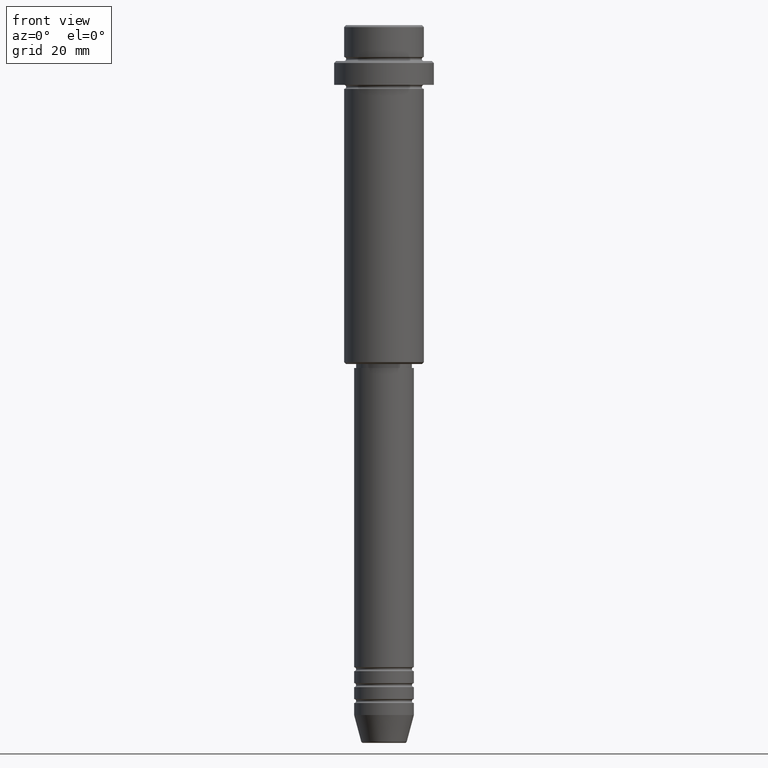
[diagram: clean part render]
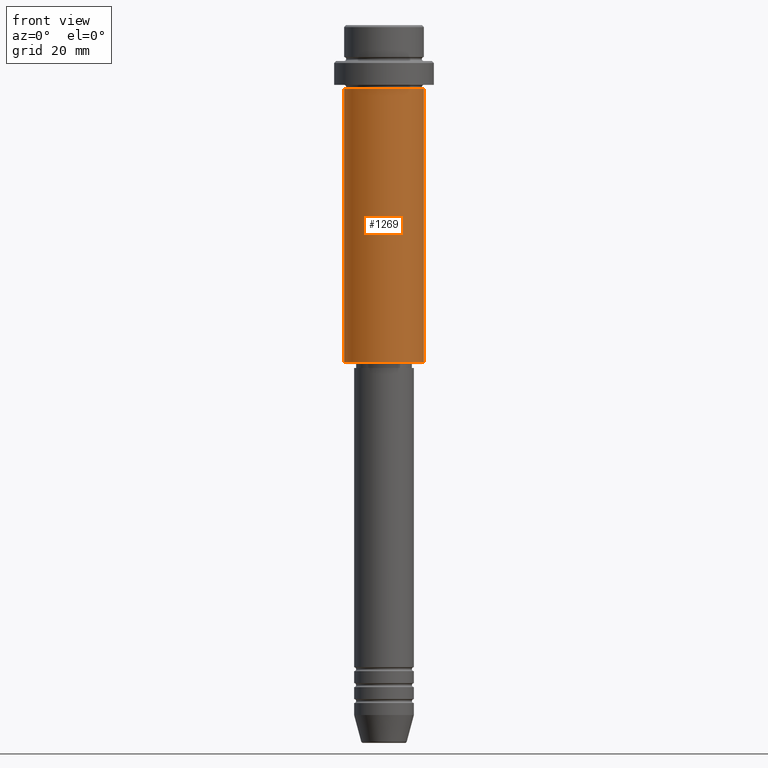
[diagram: same view with one face highlighted and labeled with its STEP entity id]
A machine part, front view. The second image highlights one B-rep face of the part: STEP entity #1269.
In plain terms, the highlighted cylindrical surface (partial cylindrical patch) has radius 10 mm, axis along (-0, -0, 1).
Its self-contained STEP definition (entity closure, byte-faithful):
#16 = VECTOR ( 'NONE', #725, 1000.000000000000000 ) ;
#54 = ORIENTED_EDGE ( 'NONE', *, *, #917, .T. ) ;
#84 = ORIENTED_EDGE ( 'NONE', *, *, #515, .F. ) ;
#145 = ORIENTED_EDGE ( 'NONE', *, *, #706, .T. ) ;
#151 = VERTEX_POINT ( 'NONE', #1162 ) ;
#159 = VERTEX_POINT ( 'NONE', #944 ) ;
#161 = EDGE_CURVE ( 'NONE', #334, #1328, #336, .T. ) ;
#191 = DIRECTION ( 'NONE',  ( -0.000000000000000000, -0.000000000000000000, 1.000000000000000000 ) ) ;
#206 = AXIS2_PLACEMENT_3D ( 'NONE', #399, #313, #498 ) ;
#245 = CARTESIAN_POINT ( 'NONE',  ( -9.999999999999998224, 1.224646799147353059E-15, 0.000000000000000000 ) ) ;
#280 = DIRECTION ( 'NONE',  ( 1.000000000000000000, 0.000000000000000000, 0.000000000000000000 ) ) ;
#303 = AXIS2_PLACEMENT_3D ( 'NONE', #971, #1410, #326 ) ;
#313 = DIRECTION ( 'NONE',  ( -0.000000000000000000, -0.000000000000000000, 1.000000000000000000 ) ) ;
#326 = DIRECTION ( 'NONE',  ( -1.000000000000000000, 0.000000000000000000, 0.000000000000000000 ) ) ;
#332 = CARTESIAN_POINT ( 'NONE',  ( -9.999999999999998224, 1.224646799147353059E-15, -16.00000000000000000 ) ) ;
#334 = VERTEX_POINT ( 'NONE', #332 ) ;
#336 = CIRCLE ( 'NONE', #206, 9.999999999999998224 ) ;
#353 = DIRECTION ( 'NONE',  ( -0.000000000000000000, -0.000000000000000000, 1.000000000000000000 ) ) ;
#399 = CARTESIAN_POINT ( 'NONE',  ( 0.000000000000000000, 0.000000000000000000, -16.00000000000000000 ) ) ;
#498 = DIRECTION ( 'NONE',  ( 1.000000000000000000, 0.000000000000000000, 0.000000000000000000 ) ) ;
#505 = AXIS2_PLACEMENT_3D ( 'NONE', #929, #191, #280 ) ;
#515 = EDGE_CURVE ( 'NONE', #159, #334, #594, .T. ) ;
#585 = VECTOR ( 'NONE', #353, 1000.000000000000000 ) ;
#594 = LINE ( 'NONE', #245, #585 ) ;
#706 = EDGE_CURVE ( 'NONE', #151, #1328, #1067, .T. ) ;
#725 = DIRECTION ( 'NONE',  ( -0.000000000000000000, -0.000000000000000000, 1.000000000000000000 ) ) ;
#912 = EDGE_LOOP ( 'NONE', ( #84, #54, #145, #1358 ) ) ;
#917 = EDGE_CURVE ( 'NONE', #159, #151, #1195, .T. ) ;
#929 = CARTESIAN_POINT ( 'NONE',  ( 0.000000000000000000, 0.000000000000000000, 0.000000000000000000 ) ) ;
#942 = FACE_OUTER_BOUND ( 'NONE', #912, .T. ) ;
#944 = CARTESIAN_POINT ( 'NONE',  ( -9.999999999999998224, 1.224646799147353059E-15, -84.49999999999998579 ) ) ;
#971 = CARTESIAN_POINT ( 'NONE',  ( 0.000000000000000000, 0.000000000000000000, -84.49999999999998579 ) ) ;
#1067 = LINE ( 'NONE', #1181, #16 ) ;
#1069 = CARTESIAN_POINT ( 'NONE',  ( 9.999999999999998224, 0.000000000000000000, -16.00000000000000000 ) ) ;
#1162 = CARTESIAN_POINT ( 'NONE',  ( 9.999999999999998224, 0.000000000000000000, -84.49999999999998579 ) ) ;
#1171 = CYLINDRICAL_SURFACE ( 'NONE', #505, 9.999999999999998224 ) ;
#1181 = CARTESIAN_POINT ( 'NONE',  ( 9.999999999999998224, 0.000000000000000000, 0.000000000000000000 ) ) ;
#1195 = CIRCLE ( 'NONE', #303, 9.999999999999998224 ) ;
#1269 = ADVANCED_FACE ( 'NONE', ( #942 ), #1171, .T. ) ;
#1328 = VERTEX_POINT ( 'NONE', #1069 ) ;
#1358 = ORIENTED_EDGE ( 'NONE', *, *, #161, .F. ) ;
#1410 = DIRECTION ( 'NONE',  ( -0.000000000000000000, -0.000000000000000000, 1.000000000000000000 ) ) ;